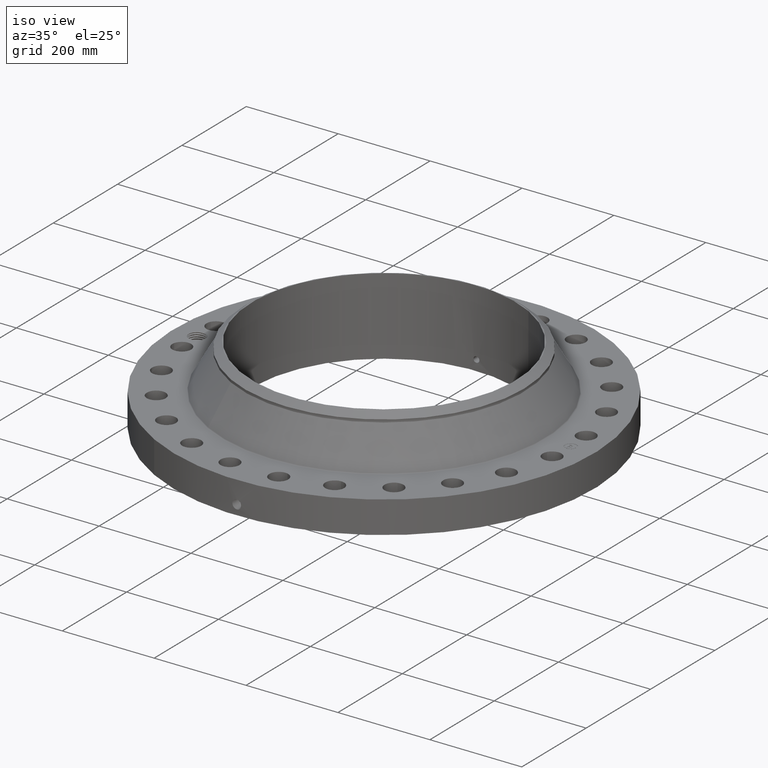
[diagram: clean part render]
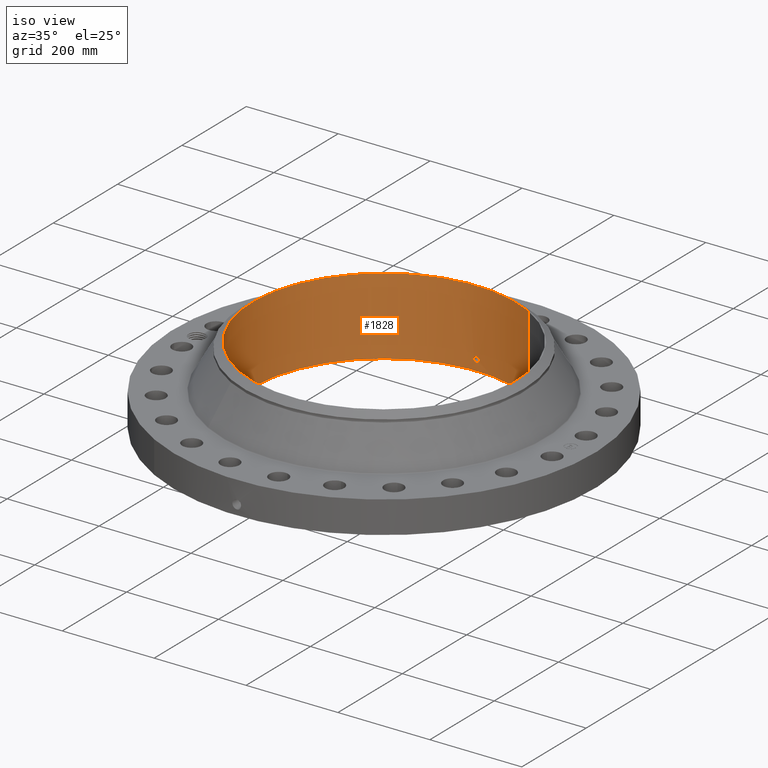
[diagram: same view with one face highlighted and labeled with its STEP entity id]
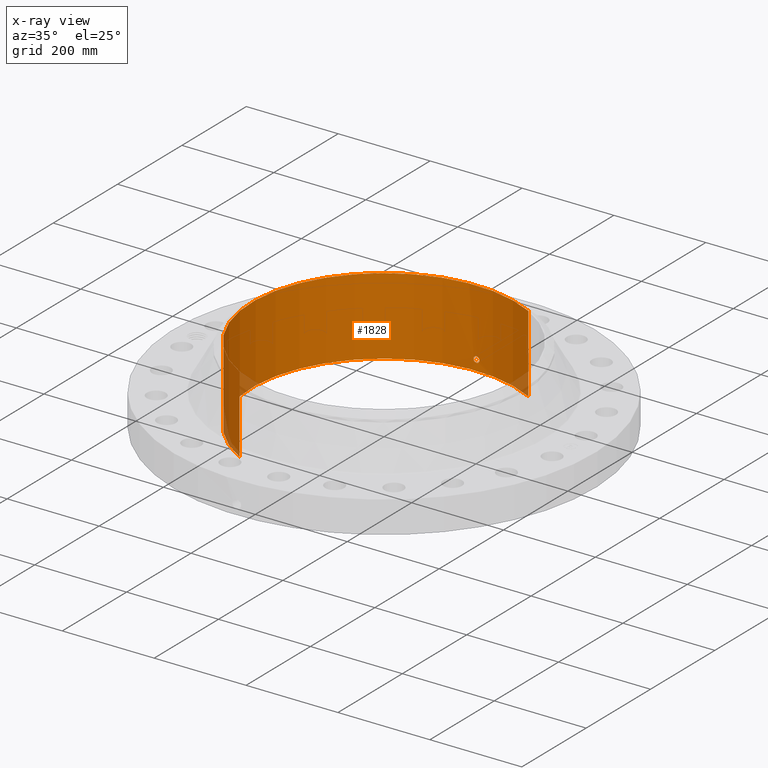
[diagram: x-ray of the same camera — body ghosted, the highlighted face saturated]
A machine part, iso view. The second image highlights one B-rep face of the part: STEP entity #1828.
The next image is the same camera in x-ray: the body ghosted, the highlighted face saturated — about 2% of this face is hidden behind the body in this view.
In plain terms, the highlighted cylindrical surface (partial cylindrical patch) has radius 287.325 mm, axis along (0, 0, -1).
Its self-contained STEP definition (entity closure, byte-faithful):
#262=AXIS2_PLACEMENT_3D('Circle Axis2P3D',#260,#261,$) ;
#1705=AXIS2_PLACEMENT_3D('Cylinder Axis2P3D',#1702,#1703,#1704) ;
#1777=AXIS2_PLACEMENT_3D('Circle Axis2P3D',#1775,#1776,$) ;
#255=CARTESIAN_POINT('Vertex',(5.42326169271,9.92721394014,0.0600000000002)) ;
#257=CARTESIAN_POINT('Vertex',(-5.42326169271,-9.92721394014,0.0600000000002)) ;
#260=CARTESIAN_POINT('Axis2P3D Location',(0.,0.,0.0600000000002)) ;
#1702=CARTESIAN_POINT('Axis2P3D Location',(0.,0.,3.37000000001)) ;
#1711=CARTESIAN_POINT('Vertex',(5.42326169271,9.92721394014,6.68000000003)) ;
#1713=CARTESIAN_POINT('Vertex',(-5.42326169271,-9.92721394014,6.68000000003)) ;
#1716=CARTESIAN_POINT('Line Origine',(5.42326169271,9.92721394014,3.37000000001)) ;
#1721=CARTESIAN_POINT('Line Origine',(-5.42326169271,-9.92721394014,3.37000000001)) ;
#1775=CARTESIAN_POINT('Axis2P3D Location',(0.,0.,6.68000000003)) ;
#1787=CARTESIAN_POINT('Control Point',(0.219395640473,11.3098722165,1.05985638466)) ;
#1788=CARTESIAN_POINT('Control Point',(0.194442717923,11.3103562682,1.105532403)) ;
#1789=CARTESIAN_POINT('Control Point',(0.157603929436,11.3110020461,1.14471334336)) ;
#1790=CARTESIAN_POINT('Control Point',(0.111104547908,11.3116301275,1.17324454069)) ;
#1791=CARTESIAN_POINT('Control Point',(0.0336685368116,11.3121298317,1.19588328385)) ;
#1792=CARTESIAN_POINT('Control Point',(-0.0446767041777,11.3119571131,1.18805560118)) ;
#1793=CARTESIAN_POINT('Control Point',(-0.0703080519831,11.3118230335,1.18204197646)) ;
#1794=CARTESIAN_POINT('Control Point',(-0.143966159213,11.3112305629,1.15420631025)) ;
#1795=CARTESIAN_POINT('Control Point',(-0.203255044779,11.3102635705,1.09948508958)) ;
#1796=CARTESIAN_POINT('Control Point',(-0.232218016827,11.3096294446,1.05324118865)) ;
#1797=CARTESIAN_POINT('Control Point',(-0.255841932639,11.3091083033,0.975096303518)) ;
#1798=CARTESIAN_POINT('Control Point',(-0.248280257416,11.3092749771,0.895736354901)) ;
#1799=CARTESIAN_POINT('Control Point',(-0.242046540814,11.3094143696,0.869177906277)) ;
#1800=CARTESIAN_POINT('Control Point',(-0.232313923617,11.30962162,0.843790374032)) ;
#1801=CARTESIAN_POINT('Control Point',(-0.219395640473,11.3098722165,0.820143615352)) ;
#1802=CARTESIAN_POINT('Vertex',(0.219395640473,11.3098722165,1.05985638466)) ;
#1804=CARTESIAN_POINT('Vertex',(-0.219395640473,11.3098722165,0.820143615352)) ;
#1808=CARTESIAN_POINT('Control Point',(-0.219395640473,11.3098722165,0.820143615352)) ;
#1809=CARTESIAN_POINT('Control Point',(-0.194442717958,11.3103562682,0.774467597068)) ;
#1810=CARTESIAN_POINT('Control Point',(-0.15760392954,11.3110020461,0.735286656755)) ;
#1811=CARTESIAN_POINT('Control Point',(-0.111104547762,11.3116301275,0.706755459271)) ;
#1812=CARTESIAN_POINT('Control Point',(-0.0336685367181,11.3121298317,0.684116716158)) ;
#1813=CARTESIAN_POINT('Control Point',(0.0446767042173,11.3119571131,0.691944398828)) ;
#1814=CARTESIAN_POINT('Control Point',(0.0703080519465,11.3118230335,0.697958023534)) ;
#1815=CARTESIAN_POINT('Control Point',(0.14396615909,11.3112305629,0.725793689706)) ;
#1816=CARTESIAN_POINT('Control Point',(0.203255044606,11.3102635705,0.780514910267)) ;
#1817=CARTESIAN_POINT('Control Point',(0.232218016896,11.3096294446,0.826758811588)) ;
#1818=CARTESIAN_POINT('Control Point',(0.255841932628,11.3091083033,0.904903696604)) ;
#1819=CARTESIAN_POINT('Control Point',(0.248280257417,11.3092749771,0.984263645107)) ;
#1820=CARTESIAN_POINT('Control Point',(0.242046540814,11.3094143696,1.01082209373)) ;
#1821=CARTESIAN_POINT('Control Point',(0.232313923617,11.30962162,1.03620962598)) ;
#1822=CARTESIAN_POINT('Control Point',(0.219395640473,11.3098722165,1.05985638466)) ;
#261=DIRECTION('Axis2P3D Direction',(0.,0.,-0.0393700787402)) ;
#1703=DIRECTION('Axis2P3D Direction',(0.,0.,-0.0393700787402)) ;
#1704=DIRECTION('Axis2P3D XDirection',(-0.0188750212049,-0.0345504945626,0.)) ;
#1717=DIRECTION('Vector Direction',(0.,0.,-0.0393700787402)) ;
#1722=DIRECTION('Vector Direction',(0.,0.,-0.0393700787402)) ;
#1776=DIRECTION('Axis2P3D Direction',(0.,0.,-0.0393700787402)) ;
#1718=VECTOR('Line Direction',#1717,0.0393700787402) ;
#1723=VECTOR('Line Direction',#1722,0.0393700787402) ;
#1781=ORIENTED_EDGE('',*,*,#1779,.F.) ;
#1782=ORIENTED_EDGE('',*,*,#1725,.T.) ;
#1783=ORIENTED_EDGE('',*,*,#264,.T.) ;
#1784=ORIENTED_EDGE('',*,*,#1720,.F.) ;
#1825=ORIENTED_EDGE('',*,*,#1806,.F.) ;
#1826=ORIENTED_EDGE('',*,*,#1823,.F.) ;
#1827=FACE_BOUND('',#1824,.T.) ;
#1828=ADVANCED_FACE('PartBody',(#1785,#1827),#1706,.F.) ;
#1786=B_SPLINE_CURVE_WITH_KNOTS('',5,(#1787,#1788,#1789,#1790,#1791,#1792,#1793,#1794,#1795,#1796,#1797,#1798,#1799,#1800,#1801),.UNSPECIFIED.,.F.,.U.,(6,3,3,3,6),(0.,9.34841004885,14.0230093045,23.3730560715,28.2127860754),.UNSPECIFIED.) ;
#1807=B_SPLINE_CURVE_WITH_KNOTS('',5,(#1808,#1809,#1810,#1811,#1812,#1813,#1814,#1815,#1816,#1817,#1818,#1819,#1820,#1821,#1822),.UNSPECIFIED.,.F.,.U.,(6,3,3,3,6),(0.,9.34841003565,14.0230092948,23.3730560413,28.2127860451),.UNSPECIFIED.) ;
#263=CIRCLE('generated circle',#262,11.312) ;
#1778=CIRCLE('generated circle',#1777,11.312) ;
#1706=CYLINDRICAL_SURFACE('generated cylinder',#1705,11.312) ;
#264=EDGE_CURVE('',#258,#256,#263,.T.) ;
#1720=EDGE_CURVE('',#1712,#256,#1719,.T.) ;
#1725=EDGE_CURVE('',#1714,#258,#1724,.T.) ;
#1779=EDGE_CURVE('',#1714,#1712,#1778,.T.) ;
#1806=EDGE_CURVE('',#1803,#1805,#1786,.T.) ;
#1823=EDGE_CURVE('',#1805,#1803,#1807,.T.) ;
#1780=EDGE_LOOP('',(#1781,#1782,#1783,#1784)) ;
#1824=EDGE_LOOP('',(#1825,#1826)) ;
#1785=FACE_OUTER_BOUND('',#1780,.T.) ;
#1719=LINE('Line',#1716,#1718) ;
#1724=LINE('Line',#1721,#1723) ;
#256=VERTEX_POINT('',#255) ;
#258=VERTEX_POINT('',#257) ;
#1712=VERTEX_POINT('',#1711) ;
#1714=VERTEX_POINT('',#1713) ;
#1803=VERTEX_POINT('',#1802) ;
#1805=VERTEX_POINT('',#1804) ;